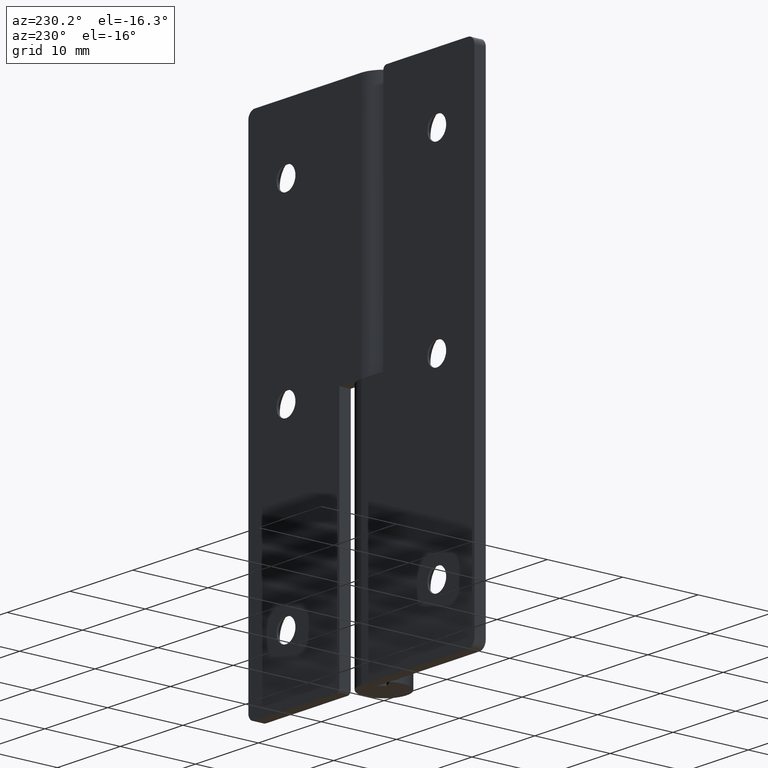
[diagram: clean part render]
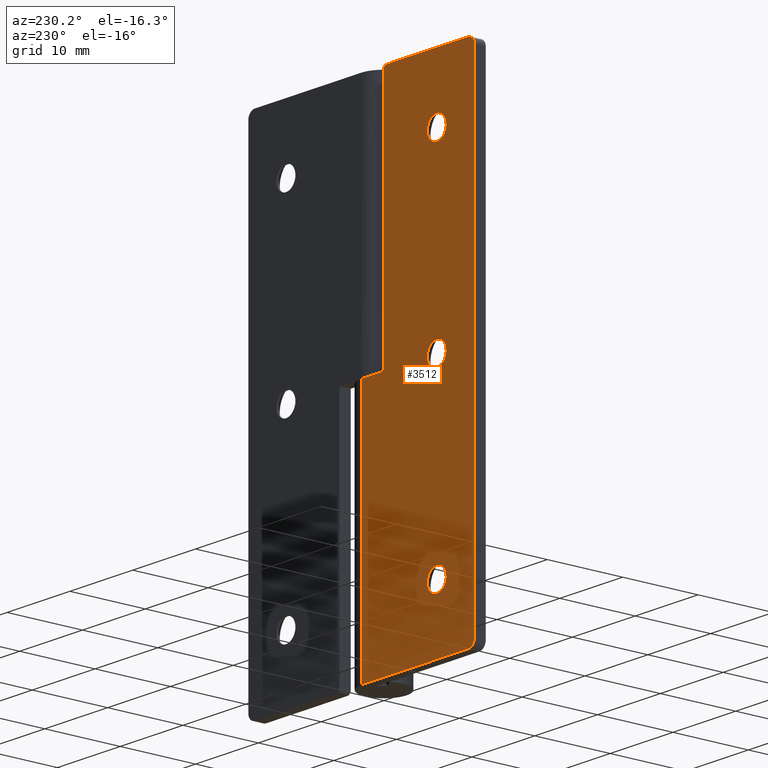
[diagram: same view with one face highlighted and labeled with its STEP entity id]
A machine part, auxiliary view. The second image highlights one B-rep face of the part: STEP entity #3512.
In plain terms, the highlighted face is a freeform B-spline surface patch.
Its self-contained STEP definition (entity closure, byte-faithful):
#2173=CARTESIAN_POINT('',(-10.510485725277810,3.0,56.677051350447712));
#2174=VERTEX_POINT('',#2173);
#2180=CARTESIAN_POINT('',(-12.0,3.0,55.0));
#2181=VERTEX_POINT('',#2180);
#2182=CARTESIAN_POINT('',(-10.510485725277819,3.000000000000000,56.677051350447712));
#2183=CARTESIAN_POINT('',(-10.499999999999996,2.999999999999999,56.588836179701616));
#2184=CARTESIAN_POINT('',(-10.500000000000000,3.0,56.500000000000000));
#2185=CARTESIAN_POINT('',(-10.500000000000002,3.0,55.000000000000007));
#2186=CARTESIAN_POINT('',(-12.0,3.0,55.0));
#2194=(BOUNDED_CURVE()B_SPLINE_CURVE(2,(#2182,#2183,#2184,#2185,#2186),.UNSPECIFIED.,.F.,.U.)B_SPLINE_CURVE_WITH_KNOTS((3,2,3),(0.229562473465400,0.250000000000000,0.500000000000000),.UNSPECIFIED.)CURVE()GEOMETRIC_REPRESENTATION_ITEM()RATIONAL_B_SPLINE_CURVE((0.956026754089404,0.976055948274782,1.0,0.707106781186548,1.0))REPRESENTATION_ITEM(''));
#2195=EDGE_CURVE('',#2174,#2181,#2194,.T.);
#2197=CARTESIAN_POINT('',(-13.497202182736340,3.0,56.408427191229777));
#2198=VERTEX_POINT('',#2197);
#2199=CARTESIAN_POINT('',(-12.0,3.0,55.0));
#2200=CARTESIAN_POINT('',(-13.411059099645408,3.0,55.0));
#2201=CARTESIAN_POINT('',(-13.497202182736341,3.0,56.408427191229784));
#2209=(BOUNDED_CURVE()B_SPLINE_CURVE(2,(#2199,#2200,#2201),.UNSPECIFIED.,.F.,.U.)B_SPLINE_CURVE_WITH_KNOTS((3,3),(0.500000000000000,0.739332962154928),.UNSPECIFIED.)CURVE()GEOMETRIC_REPRESENTATION_ITEM()RATIONAL_B_SPLINE_CURVE((1.0,0.719603993385140,0.976072041486657))REPRESENTATION_ITEM(''));
#2210=EDGE_CURVE('',#2181,#2198,#2209,.T.);
#2244=CARTESIAN_POINT('',(-12.0,3.0,58.0));
#2245=VERTEX_POINT('',#2244);
#2246=CARTESIAN_POINT('',(-13.497202182736340,3.000000000000000,56.408427191229784));
#2247=CARTESIAN_POINT('',(-13.500000000000005,3.000000000000000,56.454170854673428));
#2248=CARTESIAN_POINT('',(-13.500000000000000,3.0,56.500000000000000));
#2249=CARTESIAN_POINT('',(-13.500000000000000,3.0,58.0));
#2250=CARTESIAN_POINT('',(-12.0,3.0,58.0));
#2258=(BOUNDED_CURVE()B_SPLINE_CURVE(2,(#2246,#2247,#2248,#2249,#2250),.UNSPECIFIED.,.F.,.U.)B_SPLINE_CURVE_WITH_KNOTS((3,2,3),(0.739332962154929,0.750000000000000,1.0),.UNSPECIFIED.)CURVE()GEOMETRIC_REPRESENTATION_ITEM()RATIONAL_B_SPLINE_CURVE((0.976072041486659,0.987502787801409,1.0,0.707106781186548,1.0))REPRESENTATION_ITEM(''));
#2259=EDGE_CURVE('',#2198,#2245,#2258,.T.);
#2261=CARTESIAN_POINT('',(-12.0,3.0,58.0));
#2262=CARTESIAN_POINT('',(-10.667738211471818,3.000000000000000,57.999999999999993));
#2263=CARTESIAN_POINT('',(-10.510485725277819,3.000000000000000,56.677051350447712));
#2271=(BOUNDED_CURVE()B_SPLINE_CURVE(2,(#2261,#2262,#2263),.UNSPECIFIED.,.F.,.U.)B_SPLINE_CURVE_WITH_KNOTS((3,3),(0.0,0.229562473465400),.UNSPECIFIED.)CURVE()GEOMETRIC_REPRESENTATION_ITEM()RATIONAL_B_SPLINE_CURVE((1.0,0.731050832911766,0.956026754089404))REPRESENTATION_ITEM(''));
#2272=EDGE_CURVE('',#2245,#2174,#2271,.T.);
#2517=CARTESIAN_POINT('',(-10.510485725277810,3.0,32.677051350447712));
#2518=VERTEX_POINT('',#2517);
#2524=CARTESIAN_POINT('',(-12.0,3.0,31.0));
#2525=VERTEX_POINT('',#2524);
#2526=CARTESIAN_POINT('',(-10.510485725277819,3.0,32.677051350447705));
#2527=CARTESIAN_POINT('',(-10.500000000000002,3.0,32.588836179701630));
#2528=CARTESIAN_POINT('',(-10.500000000000000,3.0,32.500000000000000));
#2529=CARTESIAN_POINT('',(-10.500000000000002,3.0,31.000000000000007));
#2530=CARTESIAN_POINT('',(-12.0,3.0,31.0));
#2538=(BOUNDED_CURVE()B_SPLINE_CURVE(2,(#2526,#2527,#2528,#2529,#2530),.UNSPECIFIED.,.F.,.U.)B_SPLINE_CURVE_WITH_KNOTS((3,2,3),(0.229562473465400,0.250000000000000,0.500000000000000),.UNSPECIFIED.)CURVE()GEOMETRIC_REPRESENTATION_ITEM()RATIONAL_B_SPLINE_CURVE((0.956026754089405,0.976055948274783,1.0,0.707106781186548,1.0))REPRESENTATION_ITEM(''));
#2539=EDGE_CURVE('',#2518,#2525,#2538,.T.);
#2541=CARTESIAN_POINT('',(-13.497202182736340,3.0,32.408427191229791));
#2542=VERTEX_POINT('',#2541);
#2543=CARTESIAN_POINT('',(-12.0,3.0,31.0));
#2544=CARTESIAN_POINT('',(-13.411059099645428,3.0,31.000000000000004));
#2545=CARTESIAN_POINT('',(-13.497202182736338,2.999999999999999,32.408427191229784));
#2553=(BOUNDED_CURVE()B_SPLINE_CURVE(2,(#2543,#2544,#2545),.UNSPECIFIED.,.F.,.U.)B_SPLINE_CURVE_WITH_KNOTS((3,3),(0.500000000000000,0.739332962154930),.UNSPECIFIED.)CURVE()GEOMETRIC_REPRESENTATION_ITEM()RATIONAL_B_SPLINE_CURVE((1.0,0.719603993385137,0.976072041486662))REPRESENTATION_ITEM(''));
#2554=EDGE_CURVE('',#2525,#2542,#2553,.T.);
#2588=CARTESIAN_POINT('',(-12.0,3.0,34.0));
#2589=VERTEX_POINT('',#2588);
#2590=CARTESIAN_POINT('',(-13.497202182736340,3.000000000000000,32.408427191229791));
#2591=CARTESIAN_POINT('',(-13.500000000000000,3.000000000000000,32.454170854673436));
#2592=CARTESIAN_POINT('',(-13.500000000000000,3.0,32.500000000000000));
#2593=CARTESIAN_POINT('',(-13.500000000000000,3.0,34.000000000000007));
#2594=CARTESIAN_POINT('',(-12.0,3.0,34.0));
#2602=(BOUNDED_CURVE()B_SPLINE_CURVE(2,(#2590,#2591,#2592,#2593,#2594),.UNSPECIFIED.,.F.,.U.)B_SPLINE_CURVE_WITH_KNOTS((3,2,3),(0.739332962154929,0.750000000000000,1.0),.UNSPECIFIED.)CURVE()GEOMETRIC_REPRESENTATION_ITEM()RATIONAL_B_SPLINE_CURVE((0.976072041486660,0.987502787801409,1.0,0.707106781186548,1.0))REPRESENTATION_ITEM(''));
#2603=EDGE_CURVE('',#2542,#2589,#2602,.T.);
#2605=CARTESIAN_POINT('',(-12.0,3.0,34.0));
#2606=CARTESIAN_POINT('',(-10.667738211471816,3.000000000000000,33.999999999999993));
#2607=CARTESIAN_POINT('',(-10.510485725277819,3.0,32.677051350447705));
#2615=(BOUNDED_CURVE()B_SPLINE_CURVE(2,(#2605,#2606,#2607),.UNSPECIFIED.,.F.,.U.)B_SPLINE_CURVE_WITH_KNOTS((3,3),(0.0,0.229562473465400),.UNSPECIFIED.)CURVE()GEOMETRIC_REPRESENTATION_ITEM()RATIONAL_B_SPLINE_CURVE((1.0,0.731050832911765,0.956026754089405))REPRESENTATION_ITEM(''));
#2616=EDGE_CURVE('',#2589,#2518,#2615,.T.);
#2861=CARTESIAN_POINT('',(-10.510485725277810,3.0,8.677051350447606));
#2862=VERTEX_POINT('',#2861);
#2868=CARTESIAN_POINT('',(-12.0,3.0,6.999999999999901));
#2869=VERTEX_POINT('',#2868);
#2870=CARTESIAN_POINT('',(-10.510485725277817,3.0,8.677051350447606));
#2871=CARTESIAN_POINT('',(-10.500000000000000,3.000000000000000,8.588836179701520));
#2872=CARTESIAN_POINT('',(-10.500000000000000,3.0,8.499999999999901));
#2873=CARTESIAN_POINT('',(-10.500000000000002,3.0,6.999999999999899));
#2874=CARTESIAN_POINT('',(-12.0,3.0,6.999999999999901));
#2882=(BOUNDED_CURVE()B_SPLINE_CURVE(2,(#2870,#2871,#2872,#2873,#2874),.UNSPECIFIED.,.F.,.U.)B_SPLINE_CURVE_WITH_KNOTS((3,2,3),(0.229562473465400,0.250000000000000,0.500000000000000),.UNSPECIFIED.)CURVE()GEOMETRIC_REPRESENTATION_ITEM()RATIONAL_B_SPLINE_CURVE((0.956026754089405,0.976055948274783,1.0,0.707106781186548,1.0))REPRESENTATION_ITEM(''));
#2883=EDGE_CURVE('',#2862,#2869,#2882,.T.);
#2885=CARTESIAN_POINT('',(-13.497202182736340,3.0,8.408427191229684));
#2886=VERTEX_POINT('',#2885);
#2887=CARTESIAN_POINT('',(-12.0,3.0,6.999999999999901));
#2888=CARTESIAN_POINT('',(-13.411059099645408,3.0,6.999999999999898));
#2889=CARTESIAN_POINT('',(-13.497202182736341,3.0,8.408427191229684));
#2897=(BOUNDED_CURVE()B_SPLINE_CURVE(2,(#2887,#2888,#2889),.UNSPECIFIED.,.F.,.U.)B_SPLINE_CURVE_WITH_KNOTS((3,3),(0.500000000000000,0.739332962154928),.UNSPECIFIED.)CURVE()GEOMETRIC_REPRESENTATION_ITEM()RATIONAL_B_SPLINE_CURVE((1.0,0.719603993385140,0.976072041486657))REPRESENTATION_ITEM(''));
#2898=EDGE_CURVE('',#2869,#2886,#2897,.T.);
#2932=CARTESIAN_POINT('',(-12.0,3.0,9.999999999999899));
#2933=VERTEX_POINT('',#2932);
#2934=CARTESIAN_POINT('',(-13.497202182736336,3.000000000000000,8.408427191229684));
#2935=CARTESIAN_POINT('',(-13.500000000000004,3.0,8.454170854673333));
#2936=CARTESIAN_POINT('',(-13.500000000000000,3.0,8.499999999999901));
#2937=CARTESIAN_POINT('',(-13.500000000000000,3.0,9.999999999999901));
#2938=CARTESIAN_POINT('',(-12.0,3.0,9.999999999999899));
#2946=(BOUNDED_CURVE()B_SPLINE_CURVE(2,(#2934,#2935,#2936,#2937,#2938),.UNSPECIFIED.,.F.,.U.)B_SPLINE_CURVE_WITH_KNOTS((3,2,3),(0.739332962154929,0.750000000000000,1.0),.UNSPECIFIED.)CURVE()GEOMETRIC_REPRESENTATION_ITEM()RATIONAL_B_SPLINE_CURVE((0.976072041486659,0.987502787801409,1.0,0.707106781186548,1.0))REPRESENTATION_ITEM(''));
#2947=EDGE_CURVE('',#2886,#2933,#2946,.T.);
#2949=CARTESIAN_POINT('',(-12.0,3.0,9.999999999999899));
#2950=CARTESIAN_POINT('',(-10.667738211471812,3.000000000000000,9.999999999999901));
#2951=CARTESIAN_POINT('',(-10.510485725277819,3.000000000000000,8.677051350447606));
#2959=(BOUNDED_CURVE()B_SPLINE_CURVE(2,(#2949,#2950,#2951),.UNSPECIFIED.,.F.,.U.)B_SPLINE_CURVE_WITH_KNOTS((3,3),(0.0,0.229562473465400),.UNSPECIFIED.)CURVE()GEOMETRIC_REPRESENTATION_ITEM()RATIONAL_B_SPLINE_CURVE((1.0,0.731050832911765,0.956026754089405))REPRESENTATION_ITEM(''));
#2960=EDGE_CURVE('',#2933,#2862,#2959,.T.);
#2997=CARTESIAN_POINT('',(-3.500000000000000,3.0,64.500000000000000));
#2998=VERTEX_POINT('',#2997);
#3004=CARTESIAN_POINT('',(-4.0,3.0,65.0));
#3005=VERTEX_POINT('',#3004);
#3006=CARTESIAN_POINT('',(-3.500000000000000,3.0,64.500000000000000));
#3007=CARTESIAN_POINT('',(-3.499999999999999,3.0,65.0));
#3008=CARTESIAN_POINT('',(-4.0,3.0,65.0));
#3016=(BOUNDED_CURVE()B_SPLINE_CURVE(2,(#3006,#3007,#3008),.UNSPECIFIED.,.F.,.U.)CURVE()GEOMETRIC_REPRESENTATION_ITEM()QUASI_UNIFORM_CURVE()RATIONAL_B_SPLINE_CURVE((1.0,0.707106781186548,1.0))REPRESENTATION_ITEM(''));
#3017=EDGE_CURVE('',#2998,#3005,#3016,.T.);
#3062=CARTESIAN_POINT('',(0.0,3.0,32.500000000000000));
#3063=VERTEX_POINT('',#3062);
#3083=CARTESIAN_POINT('',(-3.500000000000000,3.0,32.500000000000000));
#3084=VERTEX_POINT('',#3083);
#3085=CARTESIAN_POINT('',(-3.500000000000000,3.0,32.500000000000000));
#3086=CARTESIAN_POINT('',(0.0,3.0,32.500000000000000));
#3087=QUASI_UNIFORM_CURVE('',1,(#3085,#3086),.UNSPECIFIED.,.F.,.U.);
#3088=EDGE_CURVE('',#3084,#3063,#3087,.T.);
#3110=CARTESIAN_POINT('',(-3.500000000000000,3.0,64.500000000000000));
#3111=CARTESIAN_POINT('',(-3.500000000000000,3.0,32.500000000000000));
#3112=QUASI_UNIFORM_CURVE('',1,(#3110,#3111),.UNSPECIFIED.,.F.,.U.);
#3113=EDGE_CURVE('',#2998,#3084,#3112,.T.);
#3156=CARTESIAN_POINT('',(-17.0,3.0,65.0));
#3157=VERTEX_POINT('',#3156);
#3163=CARTESIAN_POINT('',(-18.0,3.0,64.0));
#3164=VERTEX_POINT('',#3163);
#3165=CARTESIAN_POINT('',(-17.0,3.0,65.0));
#3166=CARTESIAN_POINT('',(-18.000000000000007,3.0,65.0));
#3167=CARTESIAN_POINT('',(-18.0,3.0,64.0));
#3175=(BOUNDED_CURVE()B_SPLINE_CURVE(2,(#3165,#3166,#3167),.UNSPECIFIED.,.F.,.U.)CURVE()GEOMETRIC_REPRESENTATION_ITEM()QUASI_UNIFORM_CURVE()RATIONAL_B_SPLINE_CURVE((1.0,0.707106781186548,1.0))REPRESENTATION_ITEM(''));
#3176=EDGE_CURVE('',#3157,#3164,#3175,.T.);
#3217=CARTESIAN_POINT('',(-18.0,3.0,1.0));
#3218=VERTEX_POINT('',#3217);
#3224=CARTESIAN_POINT('',(-17.0,3.0,0.0));
#3225=VERTEX_POINT('',#3224);
#3226=CARTESIAN_POINT('',(-18.0,3.0,1.0));
#3227=CARTESIAN_POINT('',(-18.000000000000007,3.0,0.0));
#3228=CARTESIAN_POINT('',(-17.0,3.0,0.0));
#3236=(BOUNDED_CURVE()B_SPLINE_CURVE(2,(#3226,#3227,#3228),.UNSPECIFIED.,.F.,.U.)CURVE()GEOMETRIC_REPRESENTATION_ITEM()QUASI_UNIFORM_CURVE()RATIONAL_B_SPLINE_CURVE((1.0,0.707106781186548,1.0))REPRESENTATION_ITEM(''));
#3237=EDGE_CURVE('',#3218,#3225,#3236,.T.);
#3350=CARTESIAN_POINT('',(0.0,3.0,0.0));
#3351=VERTEX_POINT('',#3350);
#3352=CARTESIAN_POINT('',(0.0,3.0,0.0));
#3353=CARTESIAN_POINT('',(0.0,3.0,32.500000000000000));
#3354=QUASI_UNIFORM_CURVE('',1,(#3352,#3353),.UNSPECIFIED.,.F.,.U.);
#3355=EDGE_CURVE('',#3351,#3063,#3354,.T.);
#3392=CARTESIAN_POINT('',(-17.0,3.0,0.0));
#3393=CARTESIAN_POINT('',(0.0,3.0,0.0));
#3394=QUASI_UNIFORM_CURVE('',1,(#3392,#3393),.UNSPECIFIED.,.F.,.U.);
#3395=EDGE_CURVE('',#3225,#3351,#3394,.T.);
#3414=CARTESIAN_POINT('',(-17.0,3.0,65.0));
#3415=CARTESIAN_POINT('',(-4.0,3.0,65.0));
#3416=QUASI_UNIFORM_CURVE('',1,(#3414,#3415),.UNSPECIFIED.,.F.,.U.);
#3417=EDGE_CURVE('',#3157,#3005,#3416,.T.);
#3429=CARTESIAN_POINT('',(-18.0,3.0,1.0));
#3430=CARTESIAN_POINT('',(-18.0,3.0,64.0));
#3431=QUASI_UNIFORM_CURVE('',1,(#3429,#3430),.UNSPECIFIED.,.F.,.U.);
#3432=EDGE_CURVE('',#3218,#3164,#3431,.T.);
#3478=CARTESIAN_POINT('',(-18.899099965112509,3.0,68.246749874017397));
#3479=CARTESIAN_POINT('',(-18.899099965112509,3.0,-3.246751617453247));
#3480=CARTESIAN_POINT('',(0.899100447910131,3.0,68.246749874017397));
#3481=CARTESIAN_POINT('',(0.899100447910131,3.0,-3.246751617453247));
#3482=B_SPLINE_SURFACE_WITH_KNOTS('',1,1,((#3478,#3480),(#3479,#3481)),.UNSPECIFIED.,.F.,.F.,.U.,(2,2),(2,2),(0.0,71.493501491470639),(0.0,19.798200413022641),.UNSPECIFIED.);
#3483=ORIENTED_EDGE('',*,*,#3017,.F.);
#3484=ORIENTED_EDGE('',*,*,#3113,.T.);
#3485=ORIENTED_EDGE('',*,*,#3088,.T.);
#3486=ORIENTED_EDGE('',*,*,#3355,.F.);
#3487=ORIENTED_EDGE('',*,*,#3395,.F.);
#3488=ORIENTED_EDGE('',*,*,#3237,.F.);
#3489=ORIENTED_EDGE('',*,*,#3432,.T.);
#3490=ORIENTED_EDGE('',*,*,#3176,.F.);
#3491=ORIENTED_EDGE('',*,*,#3417,.T.);
#3492=EDGE_LOOP('',(#3483,#3484,#3485,#3486,#3487,#3488,#3489,#3490,#3491));
#3493=FACE_OUTER_BOUND('',#3492,.T.);
#3494=ORIENTED_EDGE('',*,*,#2898,.F.);
#3495=ORIENTED_EDGE('',*,*,#2883,.F.);
#3496=ORIENTED_EDGE('',*,*,#2960,.F.);
#3497=ORIENTED_EDGE('',*,*,#2947,.F.);
#3498=EDGE_LOOP('',(#3494,#3495,#3496,#3497));
#3499=FACE_BOUND('',#3498,.T.);
#3500=ORIENTED_EDGE('',*,*,#2554,.F.);
#3501=ORIENTED_EDGE('',*,*,#2539,.F.);
#3502=ORIENTED_EDGE('',*,*,#2616,.F.);
#3503=ORIENTED_EDGE('',*,*,#2603,.F.);
#3504=EDGE_LOOP('',(#3500,#3501,#3502,#3503));
#3505=FACE_BOUND('',#3504,.T.);
#3506=ORIENTED_EDGE('',*,*,#2210,.F.);
#3507=ORIENTED_EDGE('',*,*,#2195,.F.);
#3508=ORIENTED_EDGE('',*,*,#2272,.F.);
#3509=ORIENTED_EDGE('',*,*,#2259,.F.);
#3510=EDGE_LOOP('',(#3506,#3507,#3508,#3509));
#3511=FACE_BOUND('',#3510,.T.);
#3512=ADVANCED_FACE('',(#3493,#3499,#3505,#3511),#3482,.F.);